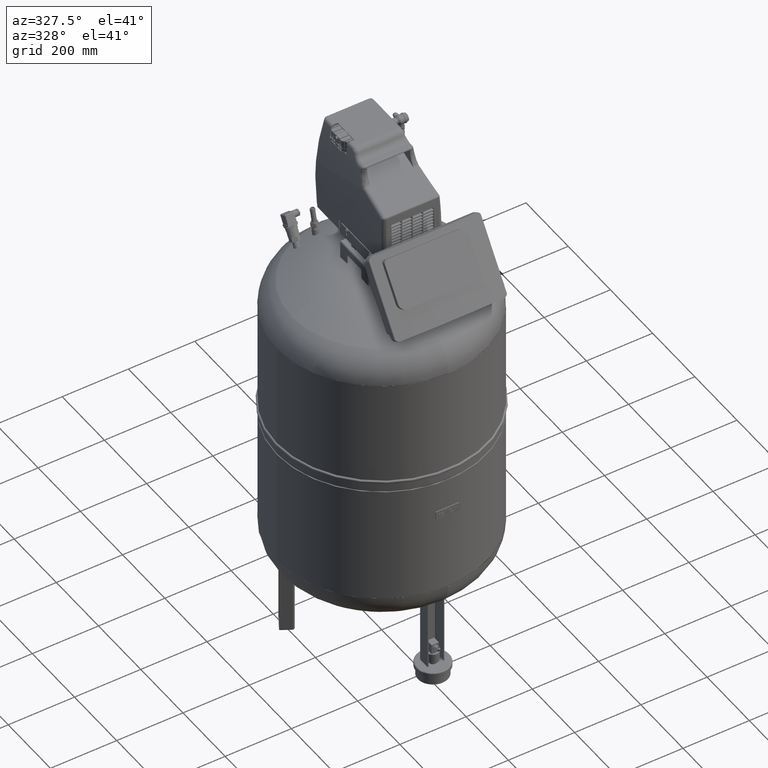
[diagram: clean part render]
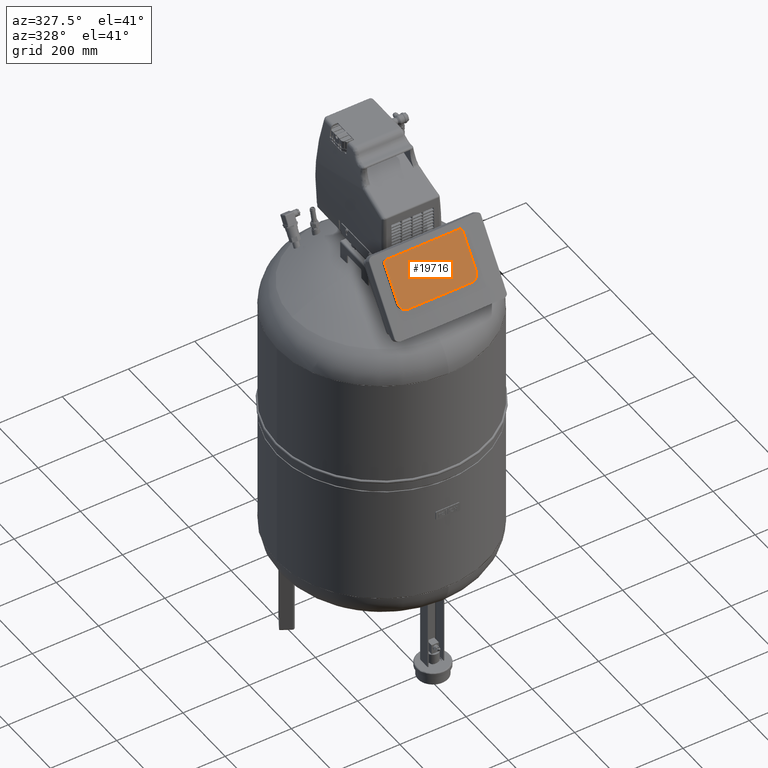
[diagram: same view with one face highlighted and labeled with its STEP entity id]
A machine part, auxiliary view. The second image highlights one B-rep face of the part: STEP entity #19716.
In plain terms, the highlighted planar face has unit normal (0, -0.8192, 0.5736).
Its self-contained STEP definition (entity closure, byte-faithful):
#19523=AXIS2_PLACEMENT_3D('Circle Axis2P3D',#19521,#19522,$) ;
#19571=AXIS2_PLACEMENT_3D('Circle Axis2P3D',#19569,#19570,$) ;
#19619=AXIS2_PLACEMENT_3D('Circle Axis2P3D',#19617,#19618,$) ;
#19667=AXIS2_PLACEMENT_3D('Circle Axis2P3D',#19665,#19666,$) ;
#19704=AXIS2_PLACEMENT_3D('Plane Axis2P3D',#19701,#19702,#19703) ;
#19518=CARTESIAN_POINT('Vertex',(98.6999994202,-293.028190027,1349.10232286)) ;
#19521=CARTESIAN_POINT('Axis2P3D Location',(77.1999994202,-293.028190027,1349.10232286)) ;
#19525=CARTESIAN_POINT('Vertex',(77.1999994202,-305.360083408,1331.49055391)) ;
#19545=CARTESIAN_POINT('Line Origine',(-19.3000005798,-305.360083408,1331.49055391)) ;
#19549=CARTESIAN_POINT('Vertex',(-115.80000058,-305.360083408,1331.49055391)) ;
#19569=CARTESIAN_POINT('Axis2P3D Location',(-115.80000058,-293.028190027,1349.10232286)) ;
#19573=CARTESIAN_POINT('Vertex',(-137.30000058,-293.028190027,1349.10232286)) ;
#19593=CARTESIAN_POINT('Line Origine',(-137.30000058,-261.481486027,1394.1556853)) ;
#19597=CARTESIAN_POINT('Vertex',(-137.30000058,-229.934782028,1439.20904773)) ;
#19617=CARTESIAN_POINT('Axis2P3D Location',(-128.80000058,-229.934782028,1439.20904773)) ;
#19621=CARTESIAN_POINT('Vertex',(-128.80000058,-225.059382319,1446.17184011)) ;
#19641=CARTESIAN_POINT('Line Origine',(-19.3000005798,-225.059382319,1446.17184011)) ;
#19645=CARTESIAN_POINT('Vertex',(90.1999994202,-225.059382319,1446.17184011)) ;
#19665=CARTESIAN_POINT('Axis2P3D Location',(90.1999994202,-229.934782028,1439.20904773)) ;
#19669=CARTESIAN_POINT('Vertex',(98.6999994202,-229.934782028,1439.20904773)) ;
#19689=CARTESIAN_POINT('Line Origine',(98.6999994202,-261.481486027,1394.1556853)) ;
#19701=CARTESIAN_POINT('Axis2P3D Location',(-19.3000005798,-264.034494918,1390.50961074)) ;
#19522=DIRECTION('Axis2P3D Direction',(-1.672843E-016,-0.819152044289,0.573576436351)) ;
#19546=DIRECTION('Vector Direction',(1.,0.,0.)) ;
#19570=DIRECTION('Axis2P3D Direction',(0.,-0.819152044289,0.573576436351)) ;
#19594=DIRECTION('Vector Direction',(0.,-0.573576436351,-0.819152044289)) ;
#19618=DIRECTION('Axis2P3D Direction',(-1.672843E-016,-0.819152044289,0.573576436351)) ;
#19642=DIRECTION('Vector Direction',(-1.,0.,0.)) ;
#19666=DIRECTION('Axis2P3D Direction',(0.,-0.819152044289,0.573576436351)) ;
#19690=DIRECTION('Vector Direction',(0.,0.573576436351,0.819152044289)) ;
#19702=DIRECTION('Axis2P3D Direction',(0.,-0.819152044289,0.573576436351)) ;
#19703=DIRECTION('Axis2P3D XDirection',(-1.,0.,0.)) ;
#19547=VECTOR('Line Direction',#19546,1.) ;
#19595=VECTOR('Line Direction',#19594,1.) ;
#19643=VECTOR('Line Direction',#19642,1.) ;
#19691=VECTOR('Line Direction',#19690,1.) ;
#19707=ORIENTED_EDGE('',*,*,#19599,.T.) ;
#19708=ORIENTED_EDGE('',*,*,#19575,.T.) ;
#19709=ORIENTED_EDGE('',*,*,#19551,.T.) ;
#19710=ORIENTED_EDGE('',*,*,#19527,.T.) ;
#19711=ORIENTED_EDGE('',*,*,#19693,.T.) ;
#19712=ORIENTED_EDGE('',*,*,#19671,.T.) ;
#19713=ORIENTED_EDGE('',*,*,#19647,.T.) ;
#19714=ORIENTED_EDGE('',*,*,#19623,.T.) ;
#19716=ADVANCED_FACE('307',(#19715),#19705,.T.) ;
#19524=CIRCLE('generated circle',#19523,21.5) ;
#19572=CIRCLE('generated circle',#19571,21.5) ;
#19620=CIRCLE('generated circle',#19619,8.5) ;
#19668=CIRCLE('generated circle',#19667,8.5) ;
#19527=EDGE_CURVE('',#19526,#19519,#19524,.T.) ;
#19551=EDGE_CURVE('',#19550,#19526,#19548,.T.) ;
#19575=EDGE_CURVE('',#19574,#19550,#19572,.T.) ;
#19599=EDGE_CURVE('',#19598,#19574,#19596,.T.) ;
#19623=EDGE_CURVE('',#19622,#19598,#19620,.T.) ;
#19647=EDGE_CURVE('',#19646,#19622,#19644,.T.) ;
#19671=EDGE_CURVE('',#19670,#19646,#19668,.T.) ;
#19693=EDGE_CURVE('',#19519,#19670,#19692,.T.) ;
#19706=EDGE_LOOP('',(#19707,#19708,#19709,#19710,#19711,#19712,#19713,#19714)) ;
#19715=FACE_OUTER_BOUND('',#19706,.T.) ;
#19548=LINE('Line',#19545,#19547) ;
#19596=LINE('Line',#19593,#19595) ;
#19644=LINE('Line',#19641,#19643) ;
#19692=LINE('Line',#19689,#19691) ;
#19705=PLANE('Plane',#19704) ;
#19519=VERTEX_POINT('',#19518) ;
#19526=VERTEX_POINT('',#19525) ;
#19550=VERTEX_POINT('',#19549) ;
#19574=VERTEX_POINT('',#19573) ;
#19598=VERTEX_POINT('',#19597) ;
#19622=VERTEX_POINT('',#19621) ;
#19646=VERTEX_POINT('',#19645) ;
#19670=VERTEX_POINT('',#19669) ;